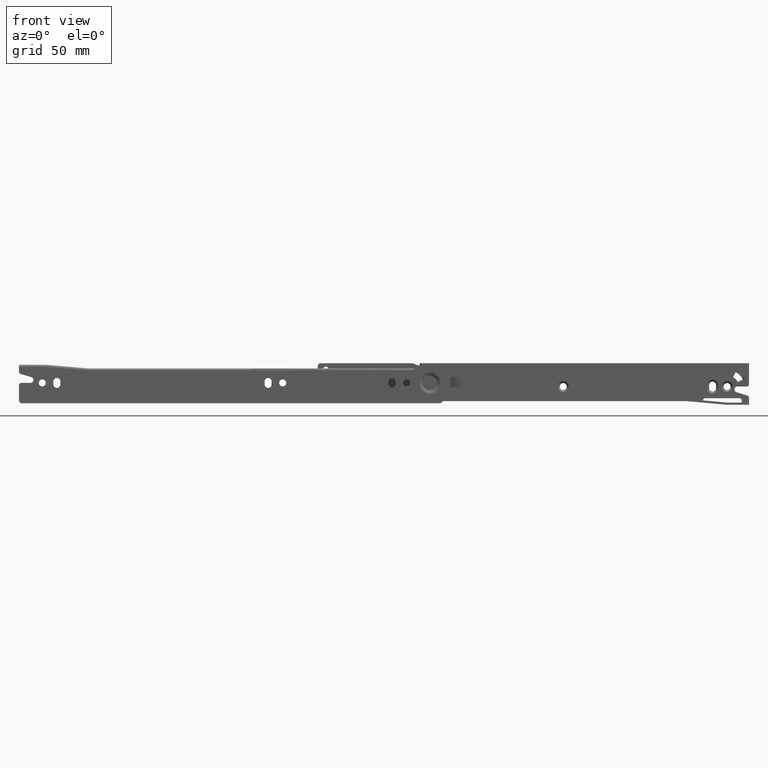
[diagram: clean part render]
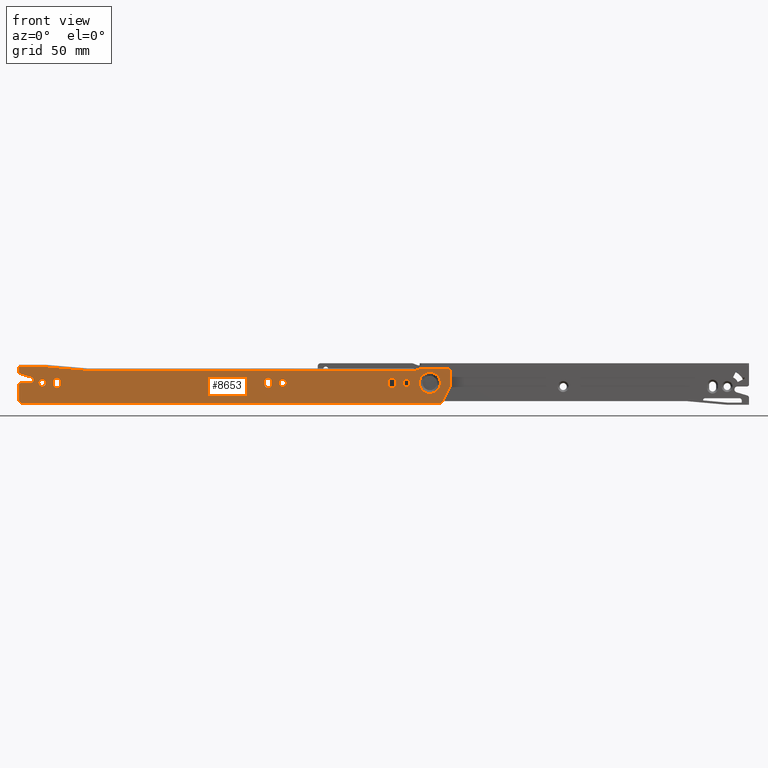
[diagram: same view with one face highlighted and labeled with its STEP entity id]
A machine part, front view. The second image highlights one B-rep face of the part: STEP entity #8653.
In plain terms, the highlighted face is a freeform B-spline surface patch.
Its self-contained STEP definition (entity closure, byte-faithful):
#5094=CARTESIAN_POINT('',(266.0,0.0,16.399999999999999));
#5095=VERTEX_POINT('',#5094);
#5096=CARTESIAN_POINT('',(263.607398397424220,4.745517E-009,14.188301863645560));
#5097=VERTEX_POINT('',#5096);
#5098=CARTESIAN_POINT('',(266.0,0.0,16.399999999999999));
#5099=CARTESIAN_POINT('',(263.781462882456370,0.0,16.399999999999999));
#5100=CARTESIAN_POINT('',(263.607398397424220,4.745517E-009,14.188301863645560));
#5108=(BOUNDED_CURVE()B_SPLINE_CURVE(2,(#5098,#5099,#5100),.UNSPECIFIED.,.F.,.U.)B_SPLINE_CURVE_WITH_KNOTS((3,3),(0.0,0.236331295823249),.UNSPECIFIED.)CURVE()GEOMETRIC_REPRESENTATION_ITEM()RATIONAL_B_SPLINE_CURVE((1.0,0.723120664239897,0.969723346134720))REPRESENTATION_ITEM(''));
#5109=EDGE_CURVE('',#5095,#5097,#5108,.T.);
#5150=CARTESIAN_POINT('',(268.392601602575780,4.745537E-009,13.811698136354430));
#5151=VERTEX_POINT('',#5150);
#5157=CARTESIAN_POINT('',(268.392601602575890,4.745537E-009,13.811698136354433));
#5158=CARTESIAN_POINT('',(268.400000000000030,0.0,13.905703709462188));
#5159=CARTESIAN_POINT('',(268.399999999999980,0.0,14.0));
#5160=CARTESIAN_POINT('',(268.400000000000090,0.0,16.400000000000002));
#5161=CARTESIAN_POINT('',(266.0,0.0,16.399999999999999));
#5169=(BOUNDED_CURVE()B_SPLINE_CURVE(2,(#5157,#5158,#5159,#5160,#5161),.UNSPECIFIED.,.F.,.U.)B_SPLINE_CURVE_WITH_KNOTS((3,2,3),(0.736331295823249,0.750000000000000,1.0),.UNSPECIFIED.)CURVE()GEOMETRIC_REPRESENTATION_ITEM()RATIONAL_B_SPLINE_CURVE((0.969723346134718,0.983986116946650,1.0,0.707106781186547,1.0))REPRESENTATION_ITEM(''));
#5170=EDGE_CURVE('',#5151,#5095,#5169,.T.);
#5193=CARTESIAN_POINT('',(266.0,0.0,11.600000000000000));
#5194=VERTEX_POINT('',#5193);
#5195=CARTESIAN_POINT('',(263.607398397424220,4.745517E-009,14.188301863645560));
#5196=CARTESIAN_POINT('',(263.600000000000020,0.0,14.094296290537809));
#5197=CARTESIAN_POINT('',(263.600000000000020,0.0,14.0));
#5198=CARTESIAN_POINT('',(263.599999999999970,0.0,11.600000000000003));
#5199=CARTESIAN_POINT('',(266.0,0.0,11.600000000000000));
#5207=(BOUNDED_CURVE()B_SPLINE_CURVE(2,(#5195,#5196,#5197,#5198,#5199),.UNSPECIFIED.,.F.,.U.)B_SPLINE_CURVE_WITH_KNOTS((3,2,3),(0.236331295823249,0.250000000000000,0.500000000000000),.UNSPECIFIED.)CURVE()GEOMETRIC_REPRESENTATION_ITEM()RATIONAL_B_SPLINE_CURVE((0.969723346134720,0.983986116946651,1.0,0.707106781186547,1.0))REPRESENTATION_ITEM(''));
#5208=EDGE_CURVE('',#5097,#5194,#5207,.T.);
#5210=CARTESIAN_POINT('',(266.0,0.0,11.600000000000000));
#5211=CARTESIAN_POINT('',(268.218537117543520,0.0,11.600000000000003));
#5212=CARTESIAN_POINT('',(268.392601602575950,4.745537E-009,13.811698136354428));
#5220=(BOUNDED_CURVE()B_SPLINE_CURVE(2,(#5210,#5211,#5212),.UNSPECIFIED.,.F.,.U.)B_SPLINE_CURVE_WITH_KNOTS((3,3),(0.500000000000000,0.736331295823249),.UNSPECIFIED.)CURVE()GEOMETRIC_REPRESENTATION_ITEM()RATIONAL_B_SPLINE_CURVE((1.0,0.723120664239898,0.969723346134718))REPRESENTATION_ITEM(''));
#5221=EDGE_CURVE('',#5194,#5151,#5220,.T.);
#5276=CARTESIAN_POINT('',(181.0,0.0,16.399999999999999));
#5277=VERTEX_POINT('',#5276);
#5278=CARTESIAN_POINT('',(178.607398397424190,4.745520E-009,14.188301863645560));
#5279=VERTEX_POINT('',#5278);
#5280=CARTESIAN_POINT('',(181.0,0.0,16.399999999999999));
#5281=CARTESIAN_POINT('',(178.781462882456480,0.0,16.399999999999999));
#5282=CARTESIAN_POINT('',(178.607398397424280,4.745520E-009,14.188301863645561));
#5290=(BOUNDED_CURVE()B_SPLINE_CURVE(2,(#5280,#5281,#5282),.UNSPECIFIED.,.F.,.U.)B_SPLINE_CURVE_WITH_KNOTS((3,3),(0.0,0.236331295823249),.UNSPECIFIED.)CURVE()GEOMETRIC_REPRESENTATION_ITEM()RATIONAL_B_SPLINE_CURVE((1.0,0.723120664239897,0.969723346134719))REPRESENTATION_ITEM(''));
#5291=EDGE_CURVE('',#5277,#5279,#5290,.T.);
#5332=CARTESIAN_POINT('',(183.392601602575810,4.745534E-009,13.811698136354430));
#5333=VERTEX_POINT('',#5332);
#5339=CARTESIAN_POINT('',(183.392601602575780,4.745534E-009,13.811698136354428));
#5340=CARTESIAN_POINT('',(183.399999999999980,0.0,13.905703709462193));
#5341=CARTESIAN_POINT('',(183.400000000000010,0.0,14.0));
#5342=CARTESIAN_POINT('',(183.399999999999980,0.0,16.400000000000002));
#5343=CARTESIAN_POINT('',(181.0,0.0,16.399999999999999));
#5351=(BOUNDED_CURVE()B_SPLINE_CURVE(2,(#5339,#5340,#5341,#5342,#5343),.UNSPECIFIED.,.F.,.U.)B_SPLINE_CURVE_WITH_KNOTS((3,2,3),(0.736331295823249,0.750000000000000,1.0),.UNSPECIFIED.)CURVE()GEOMETRIC_REPRESENTATION_ITEM()RATIONAL_B_SPLINE_CURVE((0.969723346134718,0.983986116946650,1.0,0.707106781186547,1.0))REPRESENTATION_ITEM(''));
#5352=EDGE_CURVE('',#5333,#5277,#5351,.T.);
#5375=CARTESIAN_POINT('',(181.0,0.0,11.600000000000000));
#5376=VERTEX_POINT('',#5375);
#5377=CARTESIAN_POINT('',(178.607398397424280,4.745520E-009,14.188301863645561));
#5378=CARTESIAN_POINT('',(178.600000000000020,0.0,14.094296290537800));
#5379=CARTESIAN_POINT('',(178.599999999999990,0.0,14.0));
#5380=CARTESIAN_POINT('',(178.600000000000020,0.0,11.600000000000003));
#5381=CARTESIAN_POINT('',(181.0,0.0,11.600000000000000));
#5389=(BOUNDED_CURVE()B_SPLINE_CURVE(2,(#5377,#5378,#5379,#5380,#5381),.UNSPECIFIED.,.F.,.U.)B_SPLINE_CURVE_WITH_KNOTS((3,2,3),(0.236331295823249,0.250000000000000,0.500000000000000),.UNSPECIFIED.)CURVE()GEOMETRIC_REPRESENTATION_ITEM()RATIONAL_B_SPLINE_CURVE((0.969723346134719,0.983986116946651,1.0,0.707106781186547,1.0))REPRESENTATION_ITEM(''));
#5390=EDGE_CURVE('',#5279,#5376,#5389,.T.);
#5392=CARTESIAN_POINT('',(181.0,0.0,11.600000000000000));
#5393=CARTESIAN_POINT('',(183.218537117543550,0.0,11.600000000000003));
#5394=CARTESIAN_POINT('',(183.392601602575780,4.745534E-009,13.811698136354428));
#5402=(BOUNDED_CURVE()B_SPLINE_CURVE(2,(#5392,#5393,#5394),.UNSPECIFIED.,.F.,.U.)B_SPLINE_CURVE_WITH_KNOTS((3,3),(0.500000000000000,0.736331295823249),.UNSPECIFIED.)CURVE()GEOMETRIC_REPRESENTATION_ITEM()RATIONAL_B_SPLINE_CURVE((1.0,0.723120664239898,0.969723346134718))REPRESENTATION_ITEM(''));
#5403=EDGE_CURVE('',#5376,#5333,#5402,.T.);
#5860=CARTESIAN_POINT('',(16.0,0.0,16.399999999999999));
#5861=VERTEX_POINT('',#5860);
#5862=CARTESIAN_POINT('',(13.607398397424200,4.745533E-009,14.188301863645570));
#5863=VERTEX_POINT('',#5862);
#5864=CARTESIAN_POINT('',(16.0,0.0,16.399999999999999));
#5865=CARTESIAN_POINT('',(13.781462882456470,0.0,16.399999999999999));
#5866=CARTESIAN_POINT('',(13.607398397424200,4.745533E-009,14.188301863645565));
#5874=(BOUNDED_CURVE()B_SPLINE_CURVE(2,(#5864,#5865,#5866),.UNSPECIFIED.,.F.,.U.)B_SPLINE_CURVE_WITH_KNOTS((3,3),(0.0,0.236331295823249),.UNSPECIFIED.)CURVE()GEOMETRIC_REPRESENTATION_ITEM()RATIONAL_B_SPLINE_CURVE((1.0,0.723120664239897,0.969723346134719))REPRESENTATION_ITEM(''));
#5875=EDGE_CURVE('',#5861,#5863,#5874,.T.);
#5916=CARTESIAN_POINT('',(18.392601602575802,4.745533E-009,13.811698136354430));
#5917=VERTEX_POINT('',#5916);
#5923=CARTESIAN_POINT('',(18.392601602575802,4.745533E-009,13.811698136354430));
#5924=CARTESIAN_POINT('',(18.399999999999995,0.0,13.905703709462189));
#5925=CARTESIAN_POINT('',(18.399999999999999,0.0,14.0));
#5926=CARTESIAN_POINT('',(18.399999999999995,0.0,16.400000000000002));
#5927=CARTESIAN_POINT('',(16.0,0.0,16.399999999999999));
#5935=(BOUNDED_CURVE()B_SPLINE_CURVE(2,(#5923,#5924,#5925,#5926,#5927),.UNSPECIFIED.,.F.,.U.)B_SPLINE_CURVE_WITH_KNOTS((3,2,3),(0.736331295823249,0.750000000000000,1.0),.UNSPECIFIED.)CURVE()GEOMETRIC_REPRESENTATION_ITEM()RATIONAL_B_SPLINE_CURVE((0.969723346134719,0.983986116946650,1.0,0.707106781186547,1.0))REPRESENTATION_ITEM(''));
#5936=EDGE_CURVE('',#5917,#5861,#5935,.T.);
#5959=CARTESIAN_POINT('',(16.0,0.0,11.600000000000000));
#5960=VERTEX_POINT('',#5959);
#5961=CARTESIAN_POINT('',(13.607398397424200,4.745533E-009,14.188301863645565));
#5962=CARTESIAN_POINT('',(13.600000000000007,0.0,14.094296290537804));
#5963=CARTESIAN_POINT('',(13.600000000000000,0.0,14.0));
#5964=CARTESIAN_POINT('',(13.600000000000001,0.0,11.600000000000003));
#5965=CARTESIAN_POINT('',(16.0,0.0,11.600000000000000));
#5973=(BOUNDED_CURVE()B_SPLINE_CURVE(2,(#5961,#5962,#5963,#5964,#5965),.UNSPECIFIED.,.F.,.U.)B_SPLINE_CURVE_WITH_KNOTS((3,2,3),(0.236331295823249,0.250000000000000,0.500000000000000),.UNSPECIFIED.)CURVE()GEOMETRIC_REPRESENTATION_ITEM()RATIONAL_B_SPLINE_CURVE((0.969723346134719,0.983986116946650,1.0,0.707106781186547,1.0))REPRESENTATION_ITEM(''));
#5974=EDGE_CURVE('',#5863,#5960,#5973,.T.);
#5976=CARTESIAN_POINT('',(16.0,0.0,11.600000000000000));
#5977=CARTESIAN_POINT('',(18.218537117543523,0.0,11.600000000000003));
#5978=CARTESIAN_POINT('',(18.392601602575802,4.745533E-009,13.811698136354437));
#5986=(BOUNDED_CURVE()B_SPLINE_CURVE(2,(#5976,#5977,#5978),.UNSPECIFIED.,.F.,.U.)B_SPLINE_CURVE_WITH_KNOTS((3,3),(0.500000000000000,0.736331295823249),.UNSPECIFIED.)CURVE()GEOMETRIC_REPRESENTATION_ITEM()RATIONAL_B_SPLINE_CURVE((1.0,0.723120664239898,0.969723346134718))REPRESENTATION_ITEM(''));
#5987=EDGE_CURVE('',#5960,#5917,#5986,.T.);
#6095=CARTESIAN_POINT('',(276.602319200691110,1.116248E-015,18.819307116848780));
#6096=VERTEX_POINT('',#6095);
#6110=CARTESIAN_POINT('',(282.0,0.0,6.763932022500210));
#6111=VERTEX_POINT('',#6110);
#6112=CARTESIAN_POINT('',(282.0,0.0,6.763932022500210));
#6113=CARTESIAN_POINT('',(274.763932022500230,0.0,6.763932022500212));
#6114=CARTESIAN_POINT('',(274.763932022500230,0.0,14.0));
#6115=CARTESIAN_POINT('',(274.763932022500230,0.0,16.760291870702062));
#6116=CARTESIAN_POINT('',(276.602319200691060,1.116248E-015,18.819307116848787));
#6124=(BOUNDED_CURVE()B_SPLINE_CURVE(2,(#6112,#6113,#6114,#6115,#6116),.UNSPECIFIED.,.F.,.U.)B_SPLINE_CURVE_WITH_KNOTS((3,2,3),(0.500000000000000,0.750000000000000,0.866465190568448),.UNSPECIFIED.)CURVE()GEOMETRIC_REPRESENTATION_ITEM()RATIONAL_B_SPLINE_CURVE((1.0,0.707106781186548,1.0,0.863552541818741,0.854236117394767))REPRESENTATION_ITEM(''));
#6125=EDGE_CURVE('',#6111,#6096,#6124,.T.);
#6127=CARTESIAN_POINT('',(286.163834798710980,1.198070E-015,19.918036738701261));
#6128=VERTEX_POINT('',#6127);
#6129=CARTESIAN_POINT('',(286.163834798711040,1.198070E-015,19.918036738701254));
#6130=CARTESIAN_POINT('',(289.236067977499770,0.0,17.756463288696100));
#6131=CARTESIAN_POINT('',(289.236067977499770,0.0,14.0));
#6132=CARTESIAN_POINT('',(289.236067977499720,0.0,6.763932022500212));
#6133=CARTESIAN_POINT('',(282.0,0.0,6.763932022500210));
#6141=(BOUNDED_CURVE()B_SPLINE_CURVE(2,(#6129,#6130,#6131,#6132,#6133),.UNSPECIFIED.,.F.,.U.)B_SPLINE_CURVE_WITH_KNOTS((3,2,3),(0.098941835654270,0.250000000000000,0.500000000000000),.UNSPECIFIED.)CURVE()GEOMETRIC_REPRESENTATION_ITEM()RATIONAL_B_SPLINE_CURVE((0.859917636219171,0.823024352066910,1.0,0.707106781186548,1.0))REPRESENTATION_ITEM(''));
#6142=EDGE_CURVE('',#6128,#6111,#6141,.T.);
#6193=CARTESIAN_POINT('',(282.0,0.0,21.236067977499790));
#6194=VERTEX_POINT('',#6193);
#6195=CARTESIAN_POINT('',(282.0,0.0,21.236067977499790));
#6196=CARTESIAN_POINT('',(284.290523943328710,0.0,21.236067977499783));
#6197=CARTESIAN_POINT('',(286.163834798711090,1.198070E-015,19.918036738701264));
#6205=(BOUNDED_CURVE()B_SPLINE_CURVE(2,(#6195,#6196,#6197),.UNSPECIFIED.,.F.,.U.)B_SPLINE_CURVE_WITH_KNOTS((3,3),(0.0,0.098941835654270),.UNSPECIFIED.)CURVE()GEOMETRIC_REPRESENTATION_ITEM()RATIONAL_B_SPLINE_CURVE((1.0,0.884082429119637,0.859917636219171))REPRESENTATION_ITEM(''));
#6206=EDGE_CURVE('',#6194,#6128,#6205,.T.);
#6208=CARTESIAN_POINT('',(276.602319200691060,1.116248E-015,18.819307116848787));
#6209=CARTESIAN_POINT('',(278.760118617910390,0.0,21.236067977499790));
#6210=CARTESIAN_POINT('',(282.0,0.0,21.236067977499790));
#6218=(BOUNDED_CURVE()B_SPLINE_CURVE(2,(#6208,#6209,#6210),.UNSPECIFIED.,.F.,.U.)B_SPLINE_CURVE_WITH_KNOTS((3,3),(0.866465190568448,1.0),.UNSPECIFIED.)CURVE()GEOMETRIC_REPRESENTATION_ITEM()RATIONAL_B_SPLINE_CURVE((0.854236117394767,0.843554239367807,1.0))REPRESENTATION_ITEM(''));
#6219=EDGE_CURVE('',#6096,#6194,#6218,.T.);
#6893=CARTESIAN_POINT('',(258.399999999999980,0.0,15.0));
#6894=VERTEX_POINT('',#6893);
#6909=CARTESIAN_POINT('',(258.399999999999980,0.0,12.999999999999799));
#6910=VERTEX_POINT('',#6909);
#6916=CARTESIAN_POINT('',(258.399999999999980,0.0,15.0));
#6917=CARTESIAN_POINT('',(258.399999999999980,0.0,12.999999999999799));
#6918=QUASI_UNIFORM_CURVE('',1,(#6916,#6917),.UNSPECIFIED.,.F.,.U.);
#6919=EDGE_CURVE('',#6894,#6910,#6918,.T.);
#6944=CARTESIAN_POINT('',(253.599999999999990,0.0,12.999999999999799));
#6945=VERTEX_POINT('',#6944);
#6951=CARTESIAN_POINT('',(253.599999999999990,0.0,12.999999999999799));
#6952=CARTESIAN_POINT('',(253.599999999999970,0.0,10.599999999999801));
#6953=CARTESIAN_POINT('',(256.0,0.0,10.599999999999801));
#6954=CARTESIAN_POINT('',(258.400000000000030,0.0,10.599999999999801));
#6955=CARTESIAN_POINT('',(258.399999999999980,0.0,12.999999999999799));
#6963=(BOUNDED_CURVE()B_SPLINE_CURVE(2,(#6951,#6952,#6953,#6954,#6955),.UNSPECIFIED.,.F.,.U.)B_SPLINE_CURVE_WITH_KNOTS((3,2,3),(0.0,0.500000000000000,1.0),.UNSPECIFIED.)CURVE()GEOMETRIC_REPRESENTATION_ITEM()RATIONAL_B_SPLINE_CURVE((1.0,0.707106781186547,1.0,0.707106781186547,1.0))REPRESENTATION_ITEM(''));
#6964=EDGE_CURVE('',#6945,#6910,#6963,.T.);
#7003=CARTESIAN_POINT('',(253.599999999999990,0.0,15.0));
#7004=VERTEX_POINT('',#7003);
#7028=CARTESIAN_POINT('',(258.399999999999980,0.0,15.0));
#7029=CARTESIAN_POINT('',(258.400000000000030,0.0,17.399999999999991));
#7030=CARTESIAN_POINT('',(256.0,0.0,17.399999999999999));
#7031=CARTESIAN_POINT('',(253.599999999999970,0.0,17.399999999999991));
#7032=CARTESIAN_POINT('',(253.599999999999990,0.0,15.0));
#7040=(BOUNDED_CURVE()B_SPLINE_CURVE(2,(#7028,#7029,#7030,#7031,#7032),.UNSPECIFIED.,.F.,.U.)B_SPLINE_CURVE_WITH_KNOTS((3,2,3),(0.0,0.500000000000000,1.0),.UNSPECIFIED.)CURVE()GEOMETRIC_REPRESENTATION_ITEM()RATIONAL_B_SPLINE_CURVE((1.0,0.707106781186547,1.0,0.707106781186547,1.0))REPRESENTATION_ITEM(''));
#7041=EDGE_CURVE('',#6894,#7004,#7040,.T.);
#7058=CARTESIAN_POINT('',(253.599999999999990,0.0,12.999999999999799));
#7059=CARTESIAN_POINT('',(253.599999999999990,0.0,15.0));
#7060=QUASI_UNIFORM_CURVE('',1,(#7058,#7059),.UNSPECIFIED.,.F.,.U.);
#7061=EDGE_CURVE('',#6945,#7004,#7060,.T.);
#7071=CARTESIAN_POINT('',(173.400000000000010,0.0,15.0));
#7072=VERTEX_POINT('',#7071);
#7087=CARTESIAN_POINT('',(173.400000000000010,0.0,12.999999999999799));
#7088=VERTEX_POINT('',#7087);
#7094=CARTESIAN_POINT('',(173.400000000000010,0.0,15.0));
#7095=CARTESIAN_POINT('',(173.400000000000010,0.0,12.999999999999799));
#7096=QUASI_UNIFORM_CURVE('',1,(#7094,#7095),.UNSPECIFIED.,.F.,.U.);
#7097=EDGE_CURVE('',#7072,#7088,#7096,.T.);
#7122=CARTESIAN_POINT('',(168.599999999999990,0.0,12.999999999999799));
#7123=VERTEX_POINT('',#7122);
#7129=CARTESIAN_POINT('',(168.599999999999990,0.0,12.999999999999799));
#7130=CARTESIAN_POINT('',(168.599999999999990,0.0,10.599999999999801));
#7131=CARTESIAN_POINT('',(171.0,0.0,10.599999999999801));
#7132=CARTESIAN_POINT('',(173.400000000000120,0.0,10.599999999999801));
#7133=CARTESIAN_POINT('',(173.400000000000010,0.0,12.999999999999799));
#7141=(BOUNDED_CURVE()B_SPLINE_CURVE(2,(#7129,#7130,#7131,#7132,#7133),.UNSPECIFIED.,.F.,.U.)B_SPLINE_CURVE_WITH_KNOTS((3,2,3),(0.0,0.500000000000000,1.0),.UNSPECIFIED.)CURVE()GEOMETRIC_REPRESENTATION_ITEM()RATIONAL_B_SPLINE_CURVE((1.0,0.707106781186547,1.0,0.707106781186547,1.0))REPRESENTATION_ITEM(''));
#7142=EDGE_CURVE('',#7123,#7088,#7141,.T.);
#7181=CARTESIAN_POINT('',(168.599999999999990,0.0,15.0));
#7182=VERTEX_POINT('',#7181);
#7206=CARTESIAN_POINT('',(173.400000000000010,0.0,15.0));
#7207=CARTESIAN_POINT('',(173.400000000000120,0.0,17.399999999999991));
#7208=CARTESIAN_POINT('',(171.0,0.0,17.399999999999999));
#7209=CARTESIAN_POINT('',(168.599999999999990,0.0,17.399999999999991));
#7210=CARTESIAN_POINT('',(168.599999999999990,0.0,15.0));
#7218=(BOUNDED_CURVE()B_SPLINE_CURVE(2,(#7206,#7207,#7208,#7209,#7210),.UNSPECIFIED.,.F.,.U.)B_SPLINE_CURVE_WITH_KNOTS((3,2,3),(0.0,0.500000000000000,1.0),.UNSPECIFIED.)CURVE()GEOMETRIC_REPRESENTATION_ITEM()RATIONAL_B_SPLINE_CURVE((1.0,0.707106781186547,1.0,0.707106781186547,1.0))REPRESENTATION_ITEM(''));
#7219=EDGE_CURVE('',#7072,#7182,#7218,.T.);
#7236=CARTESIAN_POINT('',(168.599999999999990,0.0,12.999999999999799));
#7237=CARTESIAN_POINT('',(168.599999999999990,0.0,15.0));
#7238=QUASI_UNIFORM_CURVE('',1,(#7236,#7237),.UNSPECIFIED.,.F.,.U.);
#7239=EDGE_CURVE('',#7123,#7182,#7238,.T.);
#7294=CARTESIAN_POINT('',(296.0,0.0,22.0));
#7295=VERTEX_POINT('',#7294);
#7296=CARTESIAN_POINT('',(294.0,0.0,24.0));
#7297=VERTEX_POINT('',#7296);
#7298=CARTESIAN_POINT('',(296.0,0.0,22.0));
#7299=CARTESIAN_POINT('',(296.000000000000060,0.0,23.999999999999996));
#7300=CARTESIAN_POINT('',(294.0,0.0,24.0));
#7308=(BOUNDED_CURVE()B_SPLINE_CURVE(2,(#7298,#7299,#7300),.UNSPECIFIED.,.F.,.U.)CURVE()GEOMETRIC_REPRESENTATION_ITEM()QUASI_UNIFORM_CURVE()RATIONAL_B_SPLINE_CURVE((1.0,0.707106781186548,1.0))REPRESENTATION_ITEM(''));
#7309=EDGE_CURVE('',#7295,#7297,#7308,.T.);
#7346=CARTESIAN_POINT('',(296.0,0.0,11.999999999999799));
#7347=VERTEX_POINT('',#7346);
#7348=CARTESIAN_POINT('',(296.0,0.0,11.999999999999799));
#7349=CARTESIAN_POINT('',(296.0,0.0,22.0));
#7350=QUASI_UNIFORM_CURVE('',1,(#7348,#7349),.UNSPECIFIED.,.F.,.U.);
#7351=EDGE_CURVE('',#7347,#7295,#7350,.T.);
#7374=CARTESIAN_POINT('',(290.552786384763980,0.0,1.105572814528706));
#7375=VERTEX_POINT('',#7374);
#7376=CARTESIAN_POINT('',(290.552786384763980,0.0,1.105572814528706));
#7377=CARTESIAN_POINT('',(296.0,0.0,11.999999999999799));
#7378=QUASI_UNIFORM_CURVE('',1,(#7376,#7377),.UNSPECIFIED.,.F.,.U.);
#7379=EDGE_CURVE('',#7375,#7347,#7378,.T.);
#7411=CARTESIAN_POINT('',(288.763932000000010,0.0,0.0));
#7412=VERTEX_POINT('',#7411);
#7413=CARTESIAN_POINT('',(288.763932000000010,0.0,0.0));
#7414=CARTESIAN_POINT('',(289.999999981770830,0.0,0.0));
#7415=CARTESIAN_POINT('',(290.552786384764090,0.0,1.105572814528651));
#7423=(BOUNDED_CURVE()B_SPLINE_CURVE(2,(#7413,#7414,#7415),.UNSPECIFIED.,.F.,.U.)CURVE()GEOMETRIC_REPRESENTATION_ITEM()QUASI_UNIFORM_CURVE()RATIONAL_B_SPLINE_CURVE((1.0,0.850650807539638,1.0))REPRESENTATION_ITEM(''));
#7424=EDGE_CURVE('',#7412,#7375,#7423,.T.);
#7455=CARTESIAN_POINT('',(272.0,0.0,22.500000000000000));
#7456=VERTEX_POINT('',#7455);
#7457=CARTESIAN_POINT('',(271.0,0.0,22.500000000000000));
#7458=VERTEX_POINT('',#7457);
#7459=CARTESIAN_POINT('',(272.0,0.0,22.500000000000000));
#7460=CARTESIAN_POINT('',(271.0,0.0,22.500000000000000));
#7461=QUASI_UNIFORM_CURVE('',1,(#7459,#7460),.UNSPECIFIED.,.F.,.U.);
#7462=EDGE_CURVE('',#7456,#7458,#7461,.T.);
#7491=CARTESIAN_POINT('',(276.0,0.0,24.0));
#7492=VERTEX_POINT('',#7491);
#7493=CARTESIAN_POINT('',(276.0,0.0,24.0));
#7494=CARTESIAN_POINT('',(272.0,0.0,22.500000000000000));
#7495=QUASI_UNIFORM_CURVE('',1,(#7493,#7494),.UNSPECIFIED.,.F.,.U.);
#7496=EDGE_CURVE('',#7492,#7456,#7495,.T.);
#7519=CARTESIAN_POINT('',(294.0,0.0,24.0));
#7520=CARTESIAN_POINT('',(276.0,0.0,24.0));
#7521=QUASI_UNIFORM_CURVE('',1,(#7519,#7520),.UNSPECIFIED.,.F.,.U.);
#7522=EDGE_CURVE('',#7297,#7492,#7521,.T.);
#7541=CARTESIAN_POINT('',(23.600000000000001,0.0,15.0));
#7542=VERTEX_POINT('',#7541);
#7548=CARTESIAN_POINT('',(23.600000000000001,0.0,12.999999999999799));
#7549=VERTEX_POINT('',#7548);
#7550=CARTESIAN_POINT('',(23.600000000000001,0.0,15.0));
#7551=CARTESIAN_POINT('',(23.600000000000001,0.0,12.999999999999799));
#7552=QUASI_UNIFORM_CURVE('',1,(#7550,#7551),.UNSPECIFIED.,.F.,.U.);
#7553=EDGE_CURVE('',#7542,#7549,#7552,.T.);
#7588=CARTESIAN_POINT('',(28.399999999999999,0.0,12.999999999999799));
#7589=VERTEX_POINT('',#7588);
#7613=CARTESIAN_POINT('',(23.600000000000001,0.0,12.999999999999799));
#7614=CARTESIAN_POINT('',(23.600000000000001,0.0,10.599999999999801));
#7615=CARTESIAN_POINT('',(26.0,0.0,10.599999999999801));
#7616=CARTESIAN_POINT('',(28.400000000000002,0.0,10.599999999999801));
#7617=CARTESIAN_POINT('',(28.399999999999999,0.0,12.999999999999799));
#7625=(BOUNDED_CURVE()B_SPLINE_CURVE(2,(#7613,#7614,#7615,#7616,#7617),.UNSPECIFIED.,.F.,.U.)B_SPLINE_CURVE_WITH_KNOTS((3,2,3),(0.0,0.500000000000000,1.0),.UNSPECIFIED.)CURVE()GEOMETRIC_REPRESENTATION_ITEM()RATIONAL_B_SPLINE_CURVE((1.0,0.707106781186547,1.0,0.707106781186547,1.0))REPRESENTATION_ITEM(''));
#7626=EDGE_CURVE('',#7549,#7589,#7625,.T.);
#7651=CARTESIAN_POINT('',(28.399999999999999,0.0,15.0));
#7652=VERTEX_POINT('',#7651);
#7658=CARTESIAN_POINT('',(28.399999999999999,0.0,15.0));
#7659=CARTESIAN_POINT('',(28.400000000000002,0.0,17.399999999999991));
#7660=CARTESIAN_POINT('',(26.0,0.0,17.399999999999999));
#7661=CARTESIAN_POINT('',(23.600000000000001,0.0,17.399999999999991));
#7662=CARTESIAN_POINT('',(23.600000000000001,0.0,15.0));
#7670=(BOUNDED_CURVE()B_SPLINE_CURVE(2,(#7658,#7659,#7660,#7661,#7662),.UNSPECIFIED.,.F.,.U.)B_SPLINE_CURVE_WITH_KNOTS((3,2,3),(0.0,0.500000000000000,1.0),.UNSPECIFIED.)CURVE()GEOMETRIC_REPRESENTATION_ITEM()RATIONAL_B_SPLINE_CURVE((1.0,0.707106781186547,1.0,0.707106781186547,1.0))REPRESENTATION_ITEM(''));
#7671=EDGE_CURVE('',#7652,#7542,#7670,.T.);
#7698=CARTESIAN_POINT('',(28.399999999999999,0.0,12.999999999999799));
#7699=CARTESIAN_POINT('',(28.399999999999999,0.0,15.0));
#7700=QUASI_UNIFORM_CURVE('',1,(#7698,#7699),.UNSPECIFIED.,.F.,.U.);
#7701=EDGE_CURVE('',#7589,#7652,#7700,.T.);
#7962=CARTESIAN_POINT('',(46.935464506606500,0.0,22.500000000000000));
#7963=VERTEX_POINT('',#7962);
#7977=CARTESIAN_POINT('',(271.0,0.0,22.500000000000000));
#7978=CARTESIAN_POINT('',(46.935464506606500,0.0,22.500000000000000));
#7979=QUASI_UNIFORM_CURVE('',1,(#7977,#7978),.UNSPECIFIED.,.F.,.U.);
#7980=EDGE_CURVE('',#7458,#7963,#7979,.T.);
#8001=CARTESIAN_POINT('',(17.935464506606550,0.0,25.0));
#8002=VERTEX_POINT('',#8001);
#8018=CARTESIAN_POINT('',(46.935464506606500,0.0,22.500000000000000));
#8019=CARTESIAN_POINT('',(17.935464506606550,0.0,25.0));
#8020=QUASI_UNIFORM_CURVE('',1,(#8018,#8019),.UNSPECIFIED.,.F.,.U.);
#8021=EDGE_CURVE('',#7963,#8002,#8020,.T.);
#8051=CARTESIAN_POINT('',(0.0,0.0,25.0));
#8052=VERTEX_POINT('',#8051);
#8068=CARTESIAN_POINT('',(17.935464506606550,0.0,25.0));
#8069=CARTESIAN_POINT('',(0.0,0.0,25.0));
#8070=QUASI_UNIFORM_CURVE('',1,(#8068,#8069),.UNSPECIFIED.,.F.,.U.);
#8071=EDGE_CURVE('',#8002,#8052,#8070,.T.);
#8159=CARTESIAN_POINT('',(-9.947598E-014,0.0,12.500000000000000));
#8160=VERTEX_POINT('',#8159);
#8161=CARTESIAN_POINT('',(0.0,0.0,2.0));
#8162=VERTEX_POINT('',#8161);
#8163=CARTESIAN_POINT('',(-9.947598E-014,0.0,12.500000000000000));
#8164=CARTESIAN_POINT('',(0.0,0.0,2.0));
#8165=QUASI_UNIFORM_CURVE('',1,(#8163,#8164),.UNSPECIFIED.,.F.,.U.);
#8166=EDGE_CURVE('',#8160,#8162,#8165,.T.);
#8204=CARTESIAN_POINT('',(1.499999999999900,0.0,14.0));
#8205=VERTEX_POINT('',#8204);
#8206=CARTESIAN_POINT('',(1.499999999999900,0.0,14.0));
#8207=CARTESIAN_POINT('',(-9.996344E-014,0.0,13.999999999999998));
#8208=CARTESIAN_POINT('',(-9.996344E-014,0.0,12.500000000000000));
#8216=(BOUNDED_CURVE()B_SPLINE_CURVE(2,(#8206,#8207,#8208),.UNSPECIFIED.,.F.,.U.)CURVE()GEOMETRIC_REPRESENTATION_ITEM()QUASI_UNIFORM_CURVE()RATIONAL_B_SPLINE_CURVE((1.0,0.707106781186548,1.0))REPRESENTATION_ITEM(''));
#8217=EDGE_CURVE('',#8205,#8160,#8216,.T.);
#8248=CARTESIAN_POINT('',(8.0,0.0,14.0));
#8249=VERTEX_POINT('',#8248);
#8250=CARTESIAN_POINT('',(8.0,0.0,14.0));
#8251=CARTESIAN_POINT('',(1.499999999999900,0.0,14.0));
#8252=QUASI_UNIFORM_CURVE('',1,(#8250,#8251),.UNSPECIFIED.,.F.,.U.);
#8253=EDGE_CURVE('',#8249,#8205,#8252,.T.);
#8289=CARTESIAN_POINT('',(8.577140990482000,0.0,17.914917302941699));
#8290=VERTEX_POINT('',#8289);
#8291=CARTESIAN_POINT('',(8.0,0.0,14.0));
#8292=CARTESIAN_POINT('',(9.726774151399797,0.0,14.000000000000005));
#8293=CARTESIAN_POINT('',(9.978614996137875,0.0,15.708310615451451));
#8294=CARTESIAN_POINT('',(10.230455840875955,0.0,17.416621230902891));
#8295=CARTESIAN_POINT('',(8.577140990481997,0.0,17.914917302941689));
#8303=(BOUNDED_CURVE()B_SPLINE_CURVE(2,(#8291,#8292,#8293,#8294,#8295),.UNSPECIFIED.,.F.,.U.)B_SPLINE_CURVE_WITH_KNOTS((3,2,3),(0.0,0.500000000000000,1.0),.UNSPECIFIED.)CURVE()GEOMETRIC_REPRESENTATION_ITEM()RATIONAL_B_SPLINE_CURVE((1.0,0.756916340249792,1.0,0.756916340249792,1.0))REPRESENTATION_ITEM(''));
#8304=EDGE_CURVE('',#8249,#8290,#8303,.T.);
#8337=CARTESIAN_POINT('',(1.067144257138398,0.0,20.178371022793751));
#8338=VERTEX_POINT('',#8337);
#8339=CARTESIAN_POINT('',(1.067144257138398,0.0,20.178371022793751));
#8340=CARTESIAN_POINT('',(8.577140990482000,0.0,17.914917302941699));
#8341=QUASI_UNIFORM_CURVE('',1,(#8339,#8340),.UNSPECIFIED.,.F.,.U.);
#8342=EDGE_CURVE('',#8338,#8290,#8341,.T.);
#8374=CARTESIAN_POINT('',(0.0,0.0,21.614559000000000));
#8375=VERTEX_POINT('',#8374);
#8376=CARTESIAN_POINT('',(0.0,0.0,21.614559000000000));
#8377=CARTESIAN_POINT('',(-9.996344E-014,0.0,20.499999895542427));
#8378=CARTESIAN_POINT('',(1.067144257138394,0.0,20.178371022793741));
#8386=(BOUNDED_CURVE()B_SPLINE_CURVE(2,(#8376,#8377,#8378),.UNSPECIFIED.,.F.,.U.)CURVE()GEOMETRIC_REPRESENTATION_ITEM()QUASI_UNIFORM_CURVE()RATIONAL_B_SPLINE_CURVE((1.0,0.802673811470452,1.0))REPRESENTATION_ITEM(''));
#8387=EDGE_CURVE('',#8375,#8338,#8386,.T.);
#8431=CARTESIAN_POINT('',(0.0,0.0,25.0));
#8432=CARTESIAN_POINT('',(0.0,0.0,21.614559000000000));
#8433=QUASI_UNIFORM_CURVE('',1,(#8431,#8432),.UNSPECIFIED.,.F.,.U.);
#8434=EDGE_CURVE('',#8052,#8375,#8433,.T.);
#8496=CARTESIAN_POINT('',(2.0,0.0,0.0));
#8497=VERTEX_POINT('',#8496);
#8498=CARTESIAN_POINT('',(2.0,0.0,0.0));
#8499=CARTESIAN_POINT('',(288.763932000000010,0.0,0.0));
#8500=QUASI_UNIFORM_CURVE('',1,(#8498,#8499),.UNSPECIFIED.,.F.,.U.);
#8501=EDGE_CURVE('',#8497,#7412,#8500,.T.);
#8533=CARTESIAN_POINT('',(0.0,0.0,2.0));
#8534=CARTESIAN_POINT('',(0.0,0.0,0.0));
#8535=CARTESIAN_POINT('',(2.0,0.0,0.0));
#8543=(BOUNDED_CURVE()B_SPLINE_CURVE(2,(#8533,#8534,#8535),.UNSPECIFIED.,.F.,.U.)CURVE()GEOMETRIC_REPRESENTATION_ITEM()QUASI_UNIFORM_CURVE()RATIONAL_B_SPLINE_CURVE((1.0,0.707106781186548,1.0))REPRESENTATION_ITEM(''));
#8544=EDGE_CURVE('',#8162,#8497,#8543,.T.);
#8585=CARTESIAN_POINT('',(-14.785199426294620,0.0,26.248749951545150));
#8586=CARTESIAN_POINT('',(310.785207365633310,0.0,26.248749951545150));
#8587=CARTESIAN_POINT('',(-14.785199426294620,0.0,-1.248750622097406));
#8588=CARTESIAN_POINT('',(310.785207365633310,0.0,-1.248750622097406));
#8589=B_SPLINE_SURFACE_WITH_KNOTS('',1,1,((#8585,#8587),(#8586,#8588)),.UNSPECIFIED.,.F.,.F.,.U.,(2,2),(2,2),(0.0,325.570406791927890),(0.0,27.497500573642562),.UNSPECIFIED.);
#8590=ORIENTED_EDGE('',*,*,#8501,.T.);
#8591=ORIENTED_EDGE('',*,*,#7424,.T.);
#8592=ORIENTED_EDGE('',*,*,#7379,.T.);
#8593=ORIENTED_EDGE('',*,*,#7351,.T.);
#8594=ORIENTED_EDGE('',*,*,#7309,.T.);
#8595=ORIENTED_EDGE('',*,*,#7522,.T.);
#8596=ORIENTED_EDGE('',*,*,#7496,.T.);
#8597=ORIENTED_EDGE('',*,*,#7462,.T.);
#8598=ORIENTED_EDGE('',*,*,#7980,.T.);
#8599=ORIENTED_EDGE('',*,*,#8021,.T.);
#8600=ORIENTED_EDGE('',*,*,#8071,.T.);
#8601=ORIENTED_EDGE('',*,*,#8434,.T.);
#8602=ORIENTED_EDGE('',*,*,#8387,.T.);
#8603=ORIENTED_EDGE('',*,*,#8342,.T.);
#8604=ORIENTED_EDGE('',*,*,#8304,.F.);
#8605=ORIENTED_EDGE('',*,*,#8253,.T.);
#8606=ORIENTED_EDGE('',*,*,#8217,.T.);
#8607=ORIENTED_EDGE('',*,*,#8166,.T.);
#8608=ORIENTED_EDGE('',*,*,#8544,.T.);
#8609=EDGE_LOOP('',(#8590,#8591,#8592,#8593,#8594,#8595,#8596,#8597,#8598,#8599,#8600,#8601,#8602,#8603,#8604,#8605,#8606,#8607,#8608));
#8610=FACE_OUTER_BOUND('',#8609,.T.);
#8611=ORIENTED_EDGE('',*,*,#7142,.F.);
#8612=ORIENTED_EDGE('',*,*,#7239,.T.);
#8613=ORIENTED_EDGE('',*,*,#7219,.F.);
#8614=ORIENTED_EDGE('',*,*,#7097,.T.);
#8615=EDGE_LOOP('',(#8611,#8612,#8613,#8614));
#8616=FACE_BOUND('',#8615,.T.);
#8617=ORIENTED_EDGE('',*,*,#7626,.F.);
#8618=ORIENTED_EDGE('',*,*,#7553,.F.);
#8619=ORIENTED_EDGE('',*,*,#7671,.F.);
#8620=ORIENTED_EDGE('',*,*,#7701,.F.);
#8621=EDGE_LOOP('',(#8617,#8618,#8619,#8620));
#8622=FACE_BOUND('',#8621,.T.);
#8623=ORIENTED_EDGE('',*,*,#6964,.F.);
#8624=ORIENTED_EDGE('',*,*,#7061,.T.);
#8625=ORIENTED_EDGE('',*,*,#7041,.F.);
#8626=ORIENTED_EDGE('',*,*,#6919,.T.);
#8627=EDGE_LOOP('',(#8623,#8624,#8625,#8626));
#8628=FACE_BOUND('',#8627,.T.);
#8629=ORIENTED_EDGE('',*,*,#6125,.T.);
#8630=ORIENTED_EDGE('',*,*,#6219,.T.);
#8631=ORIENTED_EDGE('',*,*,#6206,.T.);
#8632=ORIENTED_EDGE('',*,*,#6142,.T.);
#8633=EDGE_LOOP('',(#8629,#8630,#8631,#8632));
#8634=FACE_BOUND('',#8633,.T.);
#8635=ORIENTED_EDGE('',*,*,#5987,.F.);
#8636=ORIENTED_EDGE('',*,*,#5974,.F.);
#8637=ORIENTED_EDGE('',*,*,#5875,.F.);
#8638=ORIENTED_EDGE('',*,*,#5936,.F.);
#8639=EDGE_LOOP('',(#8635,#8636,#8637,#8638));
#8640=FACE_BOUND('',#8639,.T.);
#8641=ORIENTED_EDGE('',*,*,#5403,.F.);
#8642=ORIENTED_EDGE('',*,*,#5390,.F.);
#8643=ORIENTED_EDGE('',*,*,#5291,.F.);
#8644=ORIENTED_EDGE('',*,*,#5352,.F.);
#8645=EDGE_LOOP('',(#8641,#8642,#8643,#8644));
#8646=FACE_BOUND('',#8645,.T.);
#8647=ORIENTED_EDGE('',*,*,#5221,.F.);
#8648=ORIENTED_EDGE('',*,*,#5208,.F.);
#8649=ORIENTED_EDGE('',*,*,#5109,.F.);
#8650=ORIENTED_EDGE('',*,*,#5170,.F.);
#8651=EDGE_LOOP('',(#8647,#8648,#8649,#8650));
#8652=FACE_BOUND('',#8651,.T.);
#8653=ADVANCED_FACE('',(#8610,#8616,#8622,#8628,#8634,#8640,#8646,#8652),#8589,.F.);